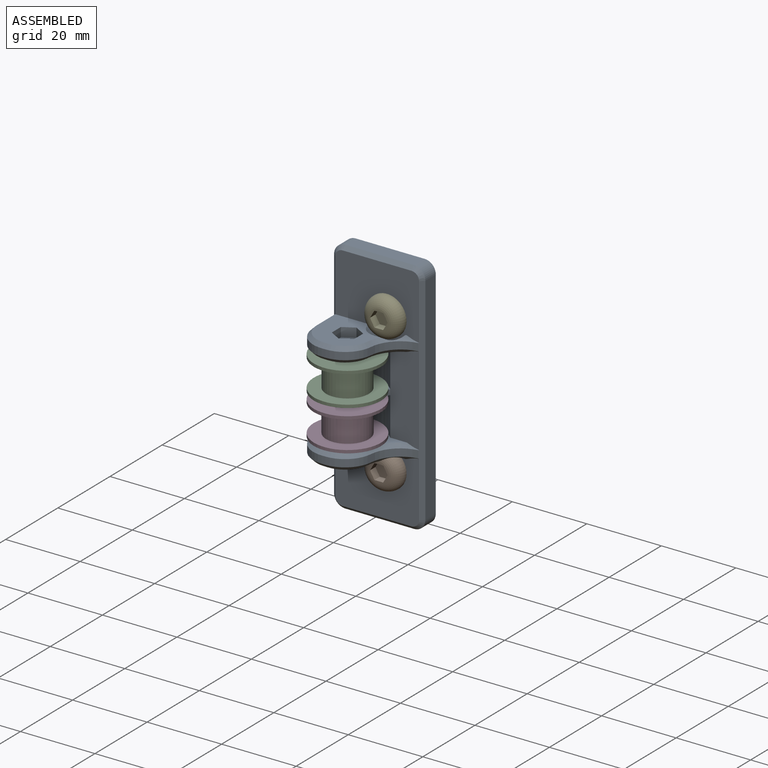
[diagram: assembled view]
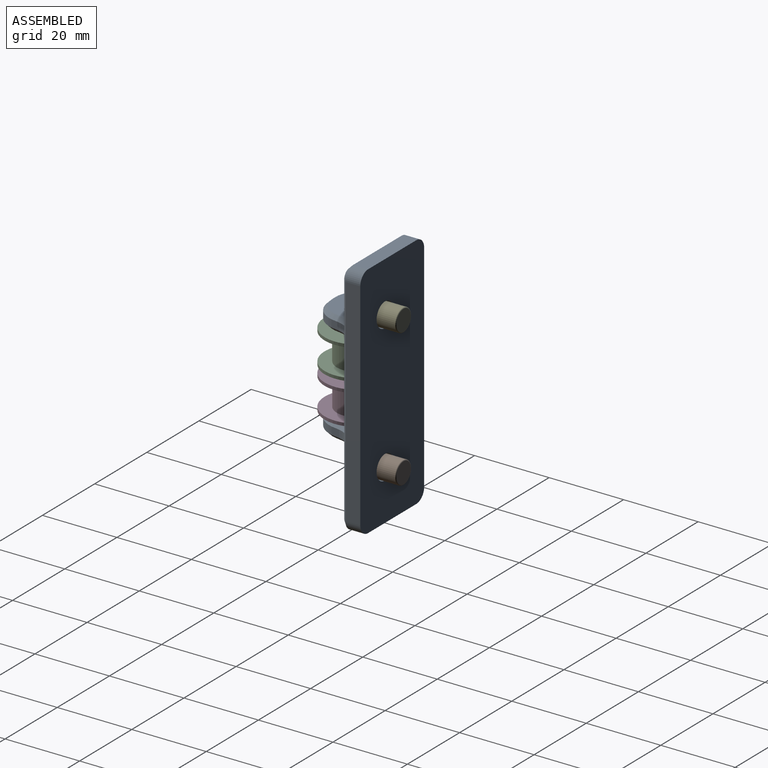
[diagram: assembled view, second angle]
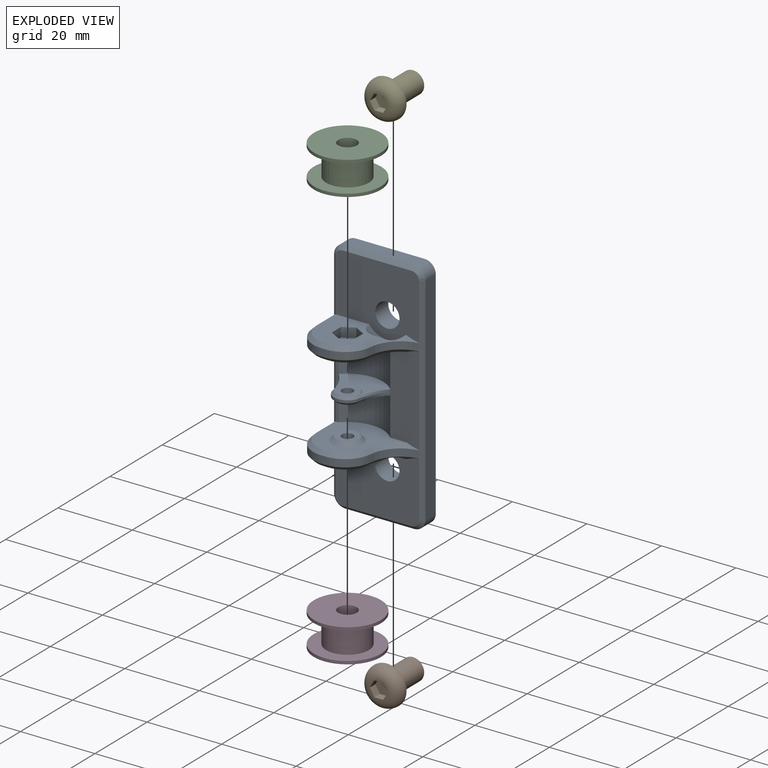
[diagram: exploded view]
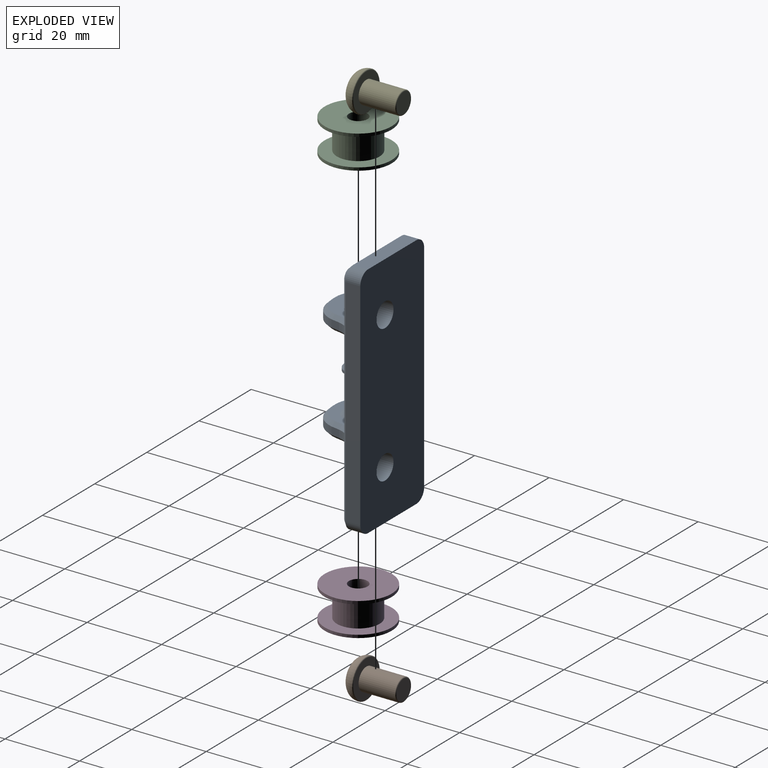
[diagram: exploded view, second angle]
ASSEMBLY  parts=5 mates=4
PART A: 95 faces, bbox 24.5x19.5x64 mm
  f0: cylinder r=1.5mm len=3mm, axis (0,0,1), area 23.6mm2, adj f1,f94
  f1: plane 6.93x6mm, normal (0,0,1), area 24.1mm2, adj f0,f2,f89,f90,f91,f92,f93
  f2: plane 3.46x2.5mm, normal (-1,0,0), area 8.7mm2, adj f1,f3,f89,f93
  f3: plane 14.98x13.5mm, normal (0,0,1), area 124.4mm2, adj f2,f4,f6,f84,f85,f86,f87,f88
  f4: torus R=1mm, axis (0,-1,0), area 39.3mm2, adj f3,f5,f6,f88
  f5: plane 0.38x0.2mm, normal (0,0,1), area 0mm2, adj f4,f6,f88
  f6: cone r=9.54mm half-angle=45deg, axis (0,0,1), area 10.5mm2, adj f3,f4,f5,f7,f83,f84,f88
  f7: cylinder r=8.54mm len=7.62mm, axis (0,0,1), area 22.6mm2, adj f6,f8,f82,f83
  f8: cone r=9.54mm half-angle=45deg, axis (0,0,-1), area 14.8mm2, adj f7,f9,f79,f80,f83
  f9: plane 23.89x7.73mm, normal (0,-1,0), area 173.5mm2, adj f8,f10,f74,f75,f76,f77,f78,f80
  f10: plane 19.25x16.5mm, normal (0,0,1), area 162.1mm2, adj f9,f11,f53,f54,f55,f56,f57,f74
  f11: cone r=4mm half-angle=45deg, axis (0,0,-1), area 31.1mm2, adj f10,f12
  f12: plane 6x6mm, normal (0,0,1), area 21.2mm2, adj f11,f13
  f13: cylinder r=1.5mm len=5mm, axis (0,0,1), area 47.1mm2, adj f12,f14
  f14: plane 14.98x13.5mm, normal (0,0,-1), area 148.5mm2, adj f13,f15,f46,f47,f49,f50,f51,f52
  f15: plane 1.04x1mm, normal (0,-0.71,-0.71), area 1.5mm2, adj f14,f16,f46,f52
  f16: plane 2x1.04mm, normal (0,-1,0), area 2.1mm2, adj f15,f17,f43,f54
  f17: cylinder r=7.5mm len=7.5mm, axis (0,0,1), area 23.6mm2, adj f16,f18,f52,f55
  f18: plane 58x12mm, normal (-1,0,0), area 264mm2, adj f17,f19,f33,f34,f35,f39,f40,f41
  f19: plane 64x24.5mm, normal (0,1,0), area 1493.9mm2, adj f18,f20,f24,f25,f29,f30,f31,f32
  f20: cylinder r=3mm len=4mm, axis (0,-1,0), area 18.8mm2, adj f19,f21,f24,f30
  f21: cone r=2mm half-angle=45deg, axis (0,1,0), area 5.6mm2, adj f20,f22,f77,f88
  f22: plane 18.5x1mm, normal (0,-0.71,0.71), area 26.2mm2, adj f21,f23,f24,f88
  f23: cone r=2mm half-angle=45deg, axis (0,1,0), area 5.6mm2, adj f22,f33,f34,f88
  f24: plane 18.5x4mm, normal (0,0,1), area 74mm2, adj f19,f20,f22,f33
  f25: plane 18.5x4mm, normal (0,0,-1), area 74mm2, adj f19,f26,f29,f42
  f26: plane 18.5x1mm, normal (0,-0.71,-0.71), area 26.2mm2, adj f25,f27,f28,f50
  f27: cone r=2mm half-angle=45deg, axis (0,1,0), area 5.6mm2, adj f26,f41,f42,f50
  f28: cone r=2mm half-angle=45deg, axis (0,1,0), area 5.6mm2, adj f26,f29,f50,f77
  f29: cylinder r=3mm len=4mm, axis (0,1,0), area 18.8mm2, adj f19,f25,f28,f30
  f30: plane 58x4mm, normal (1,0,0), area 232mm2, adj f19,f20,f29,f77
  f31: cylinder r=3.25mm len=6.5mm, axis (0,1,0), area 102.1mm2, adj f19,f88
  f32: cylinder r=3.25mm len=6.5mm, axis (0,1,0), area 102.1mm2, adj f19,f50
  f33: cylinder r=3mm len=4mm, axis (0,-1,0), area 18.8mm2, adj f18,f19,f23,f24
  f34: plane 15x1mm, normal (-0.71,-0.71,0), area 20.5mm2, adj f18,f23,f87,f88
  f35: cylinder r=7.5mm len=7.5mm, axis (0,0,1), area 23.6mm2, adj f18,f36,f38,f86
  f36: plane 2x1.04mm, normal (0,-1,0), area 2.1mm2, adj f35,f37,f82,f85
  f37: plane 1.04x1mm, normal (0,-0.71,-0.71), area 1.5mm2, adj f36,f38,f79,f80
  f38: cone r=6.5mm half-angle=45deg, axis (0,0,1), area 15.6mm2, adj f35,f37,f39,f80
  f39: plane 8x1mm, normal (-0.71,0,-0.71), area 10.6mm2, adj f18,f38,f40,f80
  f40: plane 24x1mm, normal (-0.71,-0.71,0), area 32.5mm2, adj f18,f39,f56,f57
  f41: plane 15x1mm, normal (-0.71,-0.71,0), area 20.5mm2, adj f18,f27,f50,f51
  f42: cylinder r=3mm len=4mm, axis (0,1,0), area 18.8mm2, adj f18,f19,f25,f27
  f43: cylinder r=7.5mm len=7.47mm, axis (0,0,1), area 22.1mm2, adj f16,f44,f46,f53
  f44: cylinder r=8.54mm len=7.62mm, axis (0,0,1), area 22.6mm2, adj f43,f45,f47,f78
  f45: cylinder r=1mm len=2.12mm, axis (0,0,-1), area 0.7mm2, adj f44,f47,f77,f78
  f46: cone r=6.5mm half-angle=45deg, axis (0,0,1), area 14.6mm2, adj f14,f15,f43,f47
  f47: cone r=9.54mm half-angle=45deg, axis (0,0,-1), area 10.5mm2, adj f14,f44,f45,f46,f48,f49,f50
  f48: plane 0.38x0.2mm, normal (0,0,-1), area 0mm2, adj f47,f49,f50
  f49: torus R=1mm, axis (0,-1,0), area 39.3mm2, adj f14,f47,f48,f50
  f50: plane 22.51x18.5mm, normal (0,-1,0), area 344mm2, adj f14,f26,f27,f28,f32,f41,f47,f48
  f51: plane 8x1mm, normal (-0.71,0,-0.71), area 10.6mm2, adj f14,f18,f41,f52
  f52: cone r=6.5mm half-angle=45deg, axis (0,0,1), area 15.6mm2, adj f14,f15,f17,f51
  f53: cone r=6.5mm half-angle=45deg, axis (0,0,-1), area 14.6mm2, adj f10,f43,f54,f78
  f54: plane 1.04x1mm, normal (0,-0.71,0.71), area 1.5mm2, adj f10,f16,f53,f55
  f55: cone r=6.5mm half-angle=45deg, axis (0,0,-1), area 15.6mm2, adj f10,f17,f54,f56
  f56: plane 8x1mm, normal (-0.71,0,0.71), area 10.6mm2, adj f10,f18,f40,f55
  f57: plane 22x0.92mm, normal (0,-1,0), area 20.3mm2, adj f10,f40,f58,f74,f76,f80
  f58: plane 1.44x0.85mm, normal (-0.77,-0.64,0), area 1mm2, adj f57,f59,f70,f71,f73
  f59: plane 13.86x10.31mm, normal (0,0,-1), area 74.4mm2, adj f58,f60,f69,f73,f74,f75
  f60: bspline ~9.94x9.04mm, area 4.3mm2, adj f59,f61,f69,f75
  f61: bspline ~6.88x3.18mm, area 2.8mm2, adj f60,f62,f68
  f62: cylinder r=3.65mm len=7.21mm, axis (0,0,1), area 7.3mm2, adj f61,f63,f64,f69
  f63: bspline ~4.82x1.69mm, area 1.1mm2, adj f62,f71,f73
  f64: cone r=3mm half-angle=45deg, axis (0,0,-1), area 12.7mm2, adj f62,f65,f68,f70,f71
  f65: plane 6x6mm, normal (0,0,1), area 21.2mm2, adj f64,f66
  f66: cylinder r=1.5mm len=3mm, axis (0,0,-1), area 18.8mm2, adj f65,f67
  f67: plane 6x6mm, normal (0,0,-1), area 21.2mm2, adj f66,f69
  f68: bspline ~9.94x9.04mm, area 4.3mm2, adj f61,f64,f70,f75
  f69: cone r=3mm half-angle=45deg, axis (0,0,1), area 12.7mm2, adj f59,f60,f62,f67,f73
  f70: plane 13.86x10.31mm, normal (0,0,1), area 74.4mm2, adj f58,f64,f68,f71,f75,f76
  f71: bspline ~8.6x7.85mm, area 4.3mm2, adj f58,f63,f64,f70,f72
  f72: bspline ~3.4x2.11mm, area 0.3mm2, adj f71,f73
  f73: bspline ~8.6x7.85mm, area 4.3mm2, adj f58,f59,f63,f69,f72
  f74: cylinder r=9.5mm len=13.86mm, axis (0,0,1), area 159.6mm2, adj f9,f10,f57,f59
  f75: plane 1.44x0.85mm, normal (0.77,-0.64,0), area 1mm2, adj f9,f59,f60,f68,f70
  f76: cylinder r=9.5mm len=13.86mm, axis (0,0,1), area 159.6mm2, adj f9,f57,f70,f80
  f77: plane 58x1mm, normal (0.71,-0.71,0), area 82mm2, adj f9,f21,f28,f30,f45,f50,f83,f88
  f78: cone r=9.54mm half-angle=45deg, axis (0,0,1), area 14.8mm2, adj f9,f10,f44,f45,f53
  f79: cone r=6.5mm half-angle=45deg, axis (0,0,1), area 14.6mm2, adj f8,f37,f80,f82
  f80: plane 19.25x16.5mm, normal (0,0,-1), area 162.1mm2, adj f8,f9,f37,f38,f39,f57,f76,f79
  f81: cone r=3mm half-angle=45deg, axis (0,0,1), area 31.1mm2, adj f80,f94
  f82: cylinder r=7.5mm len=7.47mm, axis (0,0,1), area 22.1mm2, adj f7,f36,f79,f84
  f83: cylinder r=1mm len=2.12mm, axis (0,0,-1), area 0.7mm2, adj f6,f7,f8,f77
  f84: cone r=6.5mm half-angle=45deg, axis (0,0,-1), area 14.6mm2, adj f3,f6,f82,f85
  f85: plane 1.04x1mm, normal (0,-0.71,0.71), area 1.5mm2, adj f3,f36,f84,f86
  f86: cone r=6.5mm half-angle=45deg, axis (0,0,-1), area 15.6mm2, adj f3,f35,f85,f87
  f87: plane 8x1mm, normal (-0.71,0,0.71), area 10.6mm2, adj f3,f18,f34,f86
  f88: plane 22.51x18.5mm, normal (0,-1,0), area 344mm2, adj f3,f4,f5,f6,f21,f22,f23,f31
  f89: plane 3x2.5mm, normal (-0.5,0.87,0), area 8.7mm2, adj f1,f2,f3,f90
  f90: plane 3x2.5mm, normal (0.5,0.87,0), area 8.7mm2, adj f1,f3,f89,f91
  f91: plane 3.46x2.5mm, normal (1,0,0), area 8.7mm2, adj f1,f3,f90,f92
  f92: plane 3x2.5mm, normal (0.5,-0.87,0), area 8.7mm2, adj f1,f3,f91,f93
  f93: plane 3x2.5mm, normal (-0.5,-0.87,0), area 8.7mm2, adj f1,f2,f3,f92
  f94: plane 6x6mm, normal (0,0,-1), area 21.2mm2, adj f0,f81
PART B: 19 faces, bbox 13.3x11.4x11.4 mm
  f0: plane 2.04x1.18mm, normal (-1,0,0), area 0.5mm2, adj f6,f10
  f1: plane 2.04x1.18mm, normal (-1,0,0), area 0.5mm2, adj f6,f11
  f2: plane 2.36x0.32mm, normal (-1,0,0), area 0.5mm2, adj f6,f12
  f3: plane 2.04x1.18mm, normal (-1,0,0), area 0.5mm2, adj f6,f13
  f4: plane 2.04x1.18mm, normal (-1,0,0), area 0.5mm2, adj f6,f14
  f5: plane 2.36x0.32mm, normal (-1,0,0), area 0.5mm2, adj f6,f15
  f6: torus R=2.36mm, axis (-1,0,0), area 126.2mm2, adj f0,f1,f2,f3,f4,f5,f17
  f7: plane 10.04x10.04mm, normal (1,0,0), area 51mm2, adj f8,f17
  f8: cylinder r=3mm len=9.75mm, axis (-1,0,0), area 183.8mm2, adj f7,f18
  f9: plane 5.5x5.5mm, normal (1,0,0), area 23.8mm2, adj f18
  f10: plane 2.08x2.04mm, normal (0,-0.5,0.87), area 4.9mm2, adj f0,f11,f15,f16
  f11: plane 2.08x2.04mm, normal (0,0.5,0.87), area 4.9mm2, adj f1,f10,f12,f16
  f12: plane 2.36x2.08mm, normal (0,1,0), area 4.9mm2, adj f2,f11,f13,f16
  f13: plane 2.08x2.04mm, normal (0,0.5,-0.87), area 4.9mm2, adj f3,f12,f14,f16
  f14: plane 2.08x2.04mm, normal (0,-0.5,-0.87), area 4.9mm2, adj f4,f13,f15,f16
  f15: plane 2.36x2.08mm, normal (0,-1,0), area 4.9mm2, adj f5,f10,f14,f16
  f16: plane 4.72x4.08mm, normal (-1,0,0), area 14.4mm2, adj f10,f11,f12,f13,f14,f15
  f17: torus R=5.02mm, axis (-1,0,0), area 12.4mm2, adj f6,f7
  f18: torus R=2.75mm, axis (-1,0,0), area 7.2mm2, adj f8,f9
PART C: 8 faces, bbox 9x18x18 mm
  f0: cylinder r=2.5mm len=9mm, axis (-1,0,0), area 141.4mm2, adj f1,f2
  f1: plane 18x18mm, normal (-1,0,0), area 234.8mm2, adj f0,f3
  f2: plane 18x18mm, normal (1,0,0), area 234.8mm2, adj f0,f4
  f3: cylinder r=9mm len=18mm, axis (-1,0,0), area 45.2mm2, adj f1,f5
  f4: cylinder r=9mm len=18mm, axis (-1,0,0), area 45.2mm2, adj f2,f6
  f5: plane 18x18mm, normal (1,0,0), area 151.1mm2, adj f3,f7
  f6: plane 18x18mm, normal (-1,0,0), area 151.1mm2, adj f4,f7
  f7: cylinder r=5.73mm len=11.47mm, axis (1,0,0), area 266.7mm2, adj f5,f6
PART D: same geometry as C
PART E: same geometry as B
PLACE A at identity fixed
PLACE B rot(axis=(-0.58,-0.58,0.58),120deg) t=(0,-5,-18.5)mm
PLACE C rot(axis=(-0.58,-0.58,-0.58),120deg) t=(-6.15,-11.5,1)mm
PLACE D rot(axis=(0.71,0,-0.71),180deg) t=(-6.15,-11.5,-1)mm
PLACE E rot(axis=(-0.58,-0.58,0.58),120deg) t=(0,-5,18.5)mm
MATE revolute D.f0 <-> A.f0  axis (0,0,1) through (-6.15,-11.5,-10)mm
MATE revolute C.f0 <-> A.f0  axis (0,0,1) through (-6.15,-11.5,10)mm
MATE revolute E.f6 <-> A.f4  axis (0,1,0) through (0,-5,18.5)mm
MATE revolute B.f6 <-> A.f32  axis (0,1,0) through (0,-5,-18.5)mm
